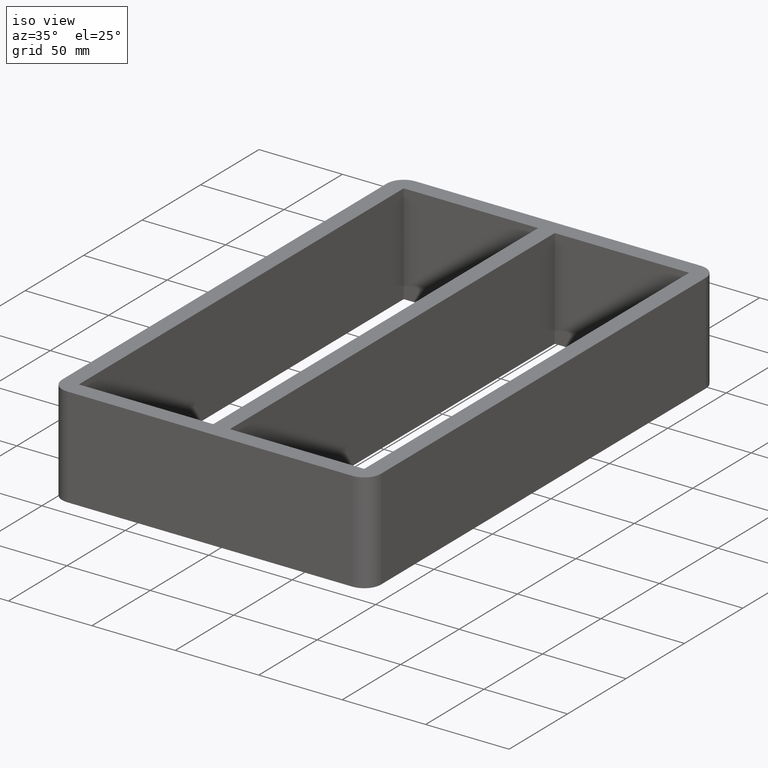
[diagram: clean part render]
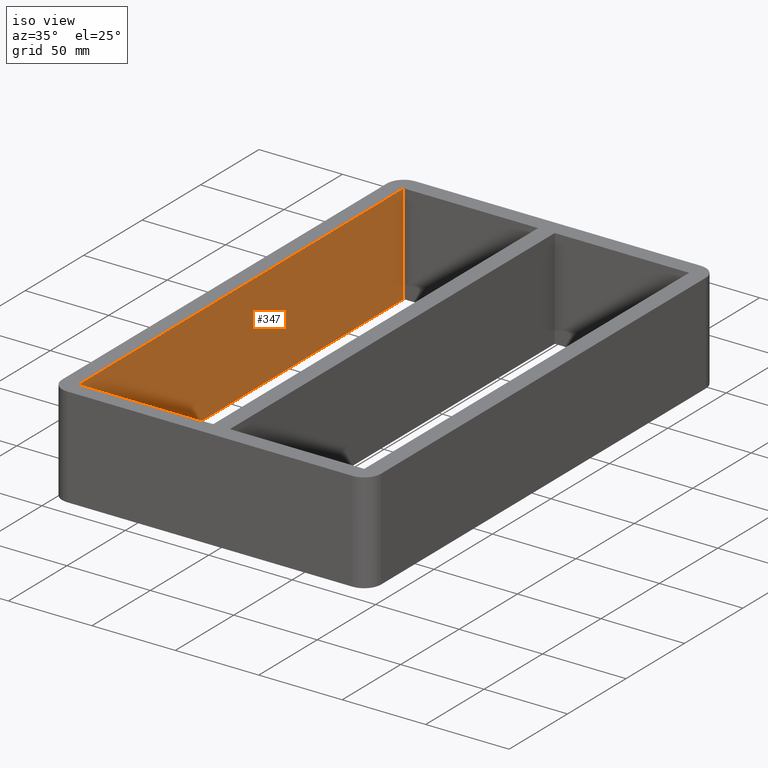
[diagram: same view with one face highlighted and labeled with its STEP entity id]
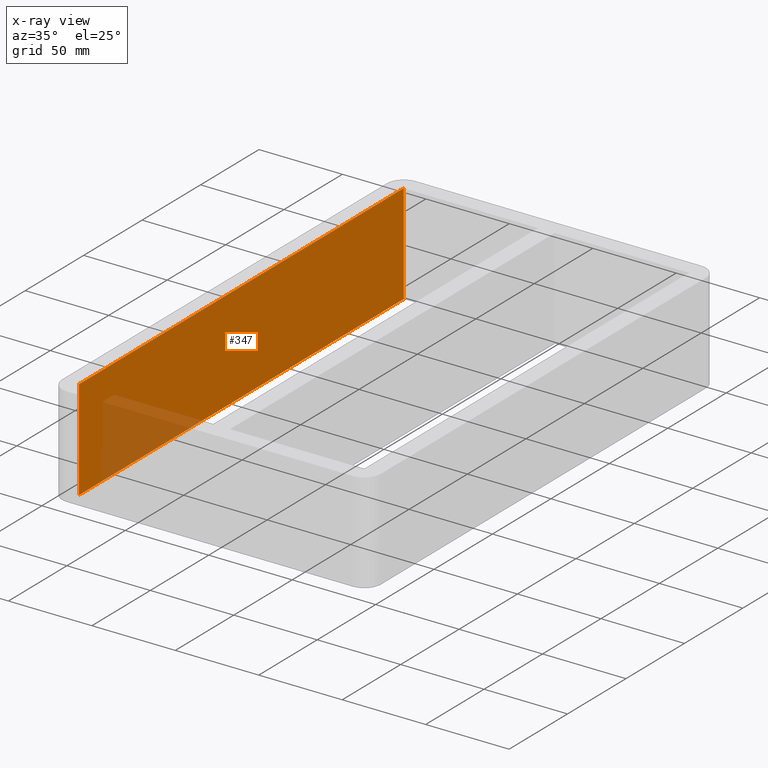
[diagram: x-ray of the same camera — body ghosted, the highlighted face saturated]
A machine part, iso view. The second image highlights one B-rep face of the part: STEP entity #347.
The next image is the same camera in x-ray: the body ghosted, the highlighted face saturated — about 12% of this face is hidden behind the body in this view.
In plain terms, the highlighted planar face has unit normal (-1, 0, 0).
Its self-contained STEP definition (entity closure, byte-faithful):
#37=FACE_OUTER_BOUND('',#55,.T.);
#55=EDGE_LOOP('',(#255,#256,#257,#258));
#89=LINE('',#538,#129);
#90=LINE('',#541,#130);
#91=LINE('',#543,#131);
#92=LINE('',#544,#132);
#129=VECTOR('',#437,10.);
#130=VECTOR('',#440,10.);
#131=VECTOR('',#441,10.);
#132=VECTOR('',#442,10.);
#163=VERTEX_POINT('',#534);
#164=VERTEX_POINT('',#536);
#165=VERTEX_POINT('',#540);
#166=VERTEX_POINT('',#542);
#201=EDGE_CURVE('',#164,#163,#89,.T.);
#202=EDGE_CURVE('',#163,#165,#90,.T.);
#203=EDGE_CURVE('',#166,#164,#91,.T.);
#204=EDGE_CURVE('',#166,#165,#92,.T.);
#255=ORIENTED_EDGE('',*,*,#202,.F.);
#256=ORIENTED_EDGE('',*,*,#201,.F.);
#257=ORIENTED_EDGE('',*,*,#203,.F.);
#258=ORIENTED_EDGE('',*,*,#204,.T.);
#333=PLANE('',#385);
#347=ADVANCED_FACE('',(#37),#333,.F.);
#385=AXIS2_PLACEMENT_3D('',#539,#438,#439);
#437=DIRECTION('',(0.,0.,-1.));
#438=DIRECTION('center_axis',(-1.,7.41213645217371E-15,0.));
#439=DIRECTION('ref_axis',(7.41213645217371E-15,1.,0.));
#440=DIRECTION('',(-7.41213645217371E-15,-1.,0.));
#441=DIRECTION('',(7.41213645217371E-15,1.,0.));
#442=DIRECTION('',(0.,0.,-1.));
#534=CARTESIAN_POINT('',(-85.4999999999998,138.999999999991,-60.));
#536=CARTESIAN_POINT('',(-85.4999999999998,138.999999999991,0.));
#538=CARTESIAN_POINT('',(-85.4999999999998,138.999999999991,0.));
#539=CARTESIAN_POINT('Origin',(-85.5000000000018,-139.000000000009,0.));
#540=CARTESIAN_POINT('',(-85.5000000000018,-139.000000000009,-60.));
#541=CARTESIAN_POINT('',(-85.5000000000013,-69.5000000000043,-60.));
#542=CARTESIAN_POINT('',(-85.5000000000018,-139.000000000009,0.));
#543=CARTESIAN_POINT('',(-85.5000000000013,-69.5000000000043,0.));
#544=CARTESIAN_POINT('',(-85.5000000000018,-139.000000000009,0.));